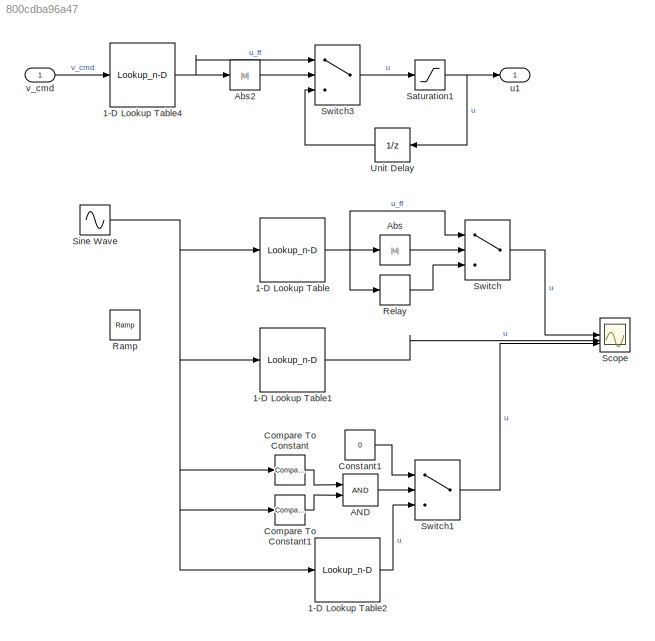
MODEL slx_800cdba96a47
KIND model
CONFIG AbsTol = auto
CONFIG EnableMultiTasking = off
CONFIG FixedStep = Ts_local
CONFIG MaxStep = auto
CONFIG MinStep = auto
CONFIG RelTol = 1e-3
CONFIG SampleTimeConstraint = Unconstrained
CONFIG SolverName = ode14x
CONFIG StartTime = 0.0
CONFIG StopTime = 20
WORKSPACE source: mxarray member
WORKSPACE delta = 0.005
WORKSPACE u_d = 0.093
BLOCK [Lookup_n-D] 1-D Lookup Table
  BreakpointsForDimension1 = lut_speed
  Commented = on
  ExtrapMethod = Clip
  InputPortMap = u0
  InternalRulePriority = Speed
  NumberOfTableDimensions = 1
  RndMeth = Simplest
  Table = lut_voltage
BLOCK [Lookup_n-D] 1-D Lookup Table1
  BreakpointsForDimension1 = lut_speed
  Commented = on
  ExtrapMethod = Clip
  InputPortMap = u0
  InternalRulePriority = Speed
  NumberOfTableDimensions = 1
  RndMeth = Simplest
  Table = lut_voltage
BLOCK [Lookup_n-D] 1-D Lookup Table2
  BreakpointsForDimension1 = lut_speed
  Commented = on
  ExtrapMethod = Clip
  InputPortMap = u0
  InternalRulePriority = Speed
  NumberOfTableDimensions = 1
  RndMeth = Simplest
  Table = lut_voltage
BLOCK [Lookup_n-D] 1-D Lookup Table4
  BreakpointsForDimension1 = lut_speed
  ExtrapMethod = Clip
  InputPortMap = u0
  InternalRulePriority = Speed
  NumberOfTableDimensions = 1
  RndMeth = Simplest
  Table = lut_voltage
BLOCK [Logic] AND
  AllPortsSameDT = off
  Commented = on
  IconShape = distinctive
  OutDataTypeStr = boolean
BLOCK [Abs] Abs
  Commented = on
  SaturateOnIntegerOverflow = off
BLOCK [Abs] Abs2
  SaturateOnIntegerOverflow = off
BLOCK [Reference] Compare To Constant  REF=simulink/Logic and Bit
Operations/Compare
To Constant
  Commented = on
  SourceBlock = simulink/Logic and Bit\nOperations/Compare\nTo Constant
  SourceType = Compare To Constant
BLOCK [Reference] Compare To Constant1  REF=simulink/Logic and Bit
Operations/Compare
To Constant
  Commented = on
  SourceBlock = simulink/Logic and Bit\nOperations/Compare\nTo Constant
  SourceType = Compare To Constant
BLOCK [Constant] Constant1
  Commented = on
  Value = 0
BLOCK [Reference] Ramp  REF=simulink/Sources/Ramp
  Commented = on
  SourceBlock = simulink/Sources/Ramp
  SourceType = Ramp
BLOCK [Relay] Relay
  Commented = on
  OffOutputValue = -u_d
  OffSwitchValue = -u_d
  OnOutputValue = u_d
  OnSwitchValue = u_d
BLOCK [Saturate] Saturation1
  LowerLimit = u_lb
  UpperLimit = u_ub
BLOCK [Scope] Scope
  ActiveDisplayYMaximum = 0.12031101740767525
  ActiveDisplayYMinimum = -0.1228099391587118
  Commented = on
  Floating = off
  GraphicalSettings = {"AxesScalingProperties":{"AlignXAxis":"Center","AlignYAxis":"Center","AutoScaleXAxisLimits":false,"AxesScaling":"Manual","AxesScalingNumUpdates":10,"ExpandOnly":true,"ScaleAxesLimitsAtStop":false,"XAxisDataRange":100,"YAxisDataRange":80},"DisplayProperties":{"ColorOrder":["auto","auto","auto","auto","auto","auto","auto","auto","auto","auto","auto","auto","auto","auto","auto","auto","auto","auto",...<+2834ch>
  LayoutDimensionsString = [3,1]
  MultipleDisplayCache = [{"MaxYLimMag":0.1228099391587118,"MaxYLimReal":0.12031101740767525,"MinYLimMag":0,"MinYLimReal":-0.1228099391587118,"PlotAsMagnitudePhase":false,"ShowGrid":true,"ShowLegend":true,"Title":"%<SignalLabel>","YLabel":""},{"MaxYLimMag":0.1228099391587118,"MaxYLimReal":0.12031101740767525,"MinYLimMag":0,"MinYLimReal":-0.1228099391587118,"PlotAsMagnitudePhase":false,"ShowGrid":true,"ShowLegend":true,"Ti...<+252ch>
  NumInputPorts = 3
  ScopeFrameLocation = window
  ShowLegend = on
  WasSavedAsWebScope = on
  WindowPosition = [67.000000,38.000000,2494.000000,1531.000000,]
BLOCK [Sin] Sine Wave
  Amplitude = 0.001
  Bias = -0.1536
  Commented = on
  SampleTime = 0
BLOCK [Switch] Switch
  Commented = on
  Criteria = u2 > Threshold
  InputSameDT = off
  SaturateOnIntegerOverflow = off
  Threshold = u_d
BLOCK [Switch] Switch1
  Commented = on
  Criteria = u2 ~= 0
  InputSameDT = off
  NameLocation = top
  SaturateOnIntegerOverflow = off
  Threshold = u_d
BLOCK [Switch] Switch3
  Criteria = u2 > Threshold
  InputSameDT = off
  SaturateOnIntegerOverflow = off
  Threshold = u_d + delta
BLOCK [UnitDelay] Unit Delay
  HasFrameUpgradeWarning = on
  NameLocation = top
  SampleTime = -1
BLOCK [Outport] u1
BLOCK [Inport] v_cmd
  PortDimensions = 3
LINE 1-D Lookup Table1:1 -> Scope:2
LINE 1-D Lookup Table2:1 -> Switch1:3
NET 1-D Lookup Table4:1 -> Abs2:1, Switch3:1
NET 1-D Lookup Table:1 -> Abs:1, Relay:1, Switch:1
LINE AND:1 -> Switch1:2
LINE Abs2:1 -> Switch3:2
LINE Abs:1 -> Switch:2
LINE Compare To Constant1:1 -> AND:2
LINE Compare To Constant:1 -> AND:1
LINE Constant1:1 -> Switch1:1
LINE Relay:1 -> Switch:3
NET Saturation1:1 -> Unit Delay:1, u1:1
NET Sine Wave:1 -> 1-D Lookup Table1:1, 1-D Lookup Table2:1, 1-D Lookup Table:1, Compare To Constant1:1, Compare To Constant:1
LINE Switch1:1 -> Scope:3
LINE Switch3:1 -> Saturation1:1
LINE Switch:1 -> Scope:1
LINE Unit Delay:1 -> Switch3:3
LINE v_cmd:1 -> 1-D Lookup Table4:1
note: NET lines group one-source signal fan-out (src -> all destinations, sorted); 1:1 wires keep LINE
